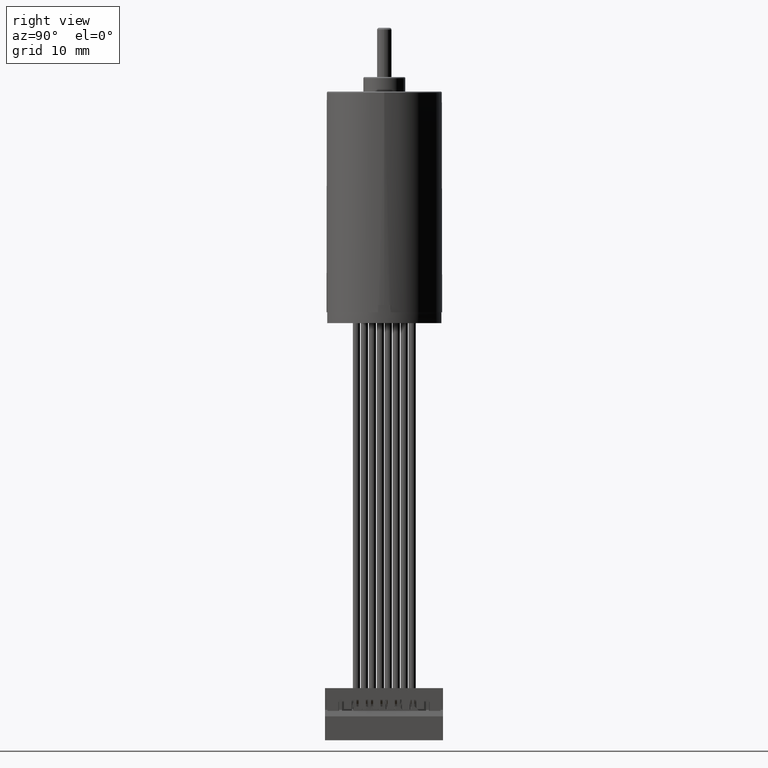
[diagram: clean part render]
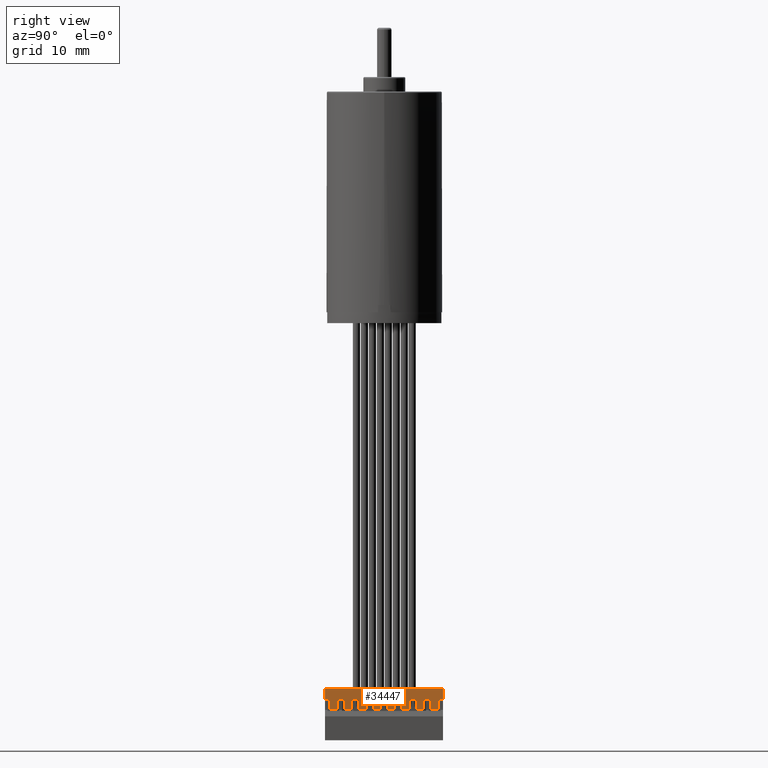
[diagram: same view with one face highlighted and labeled with its STEP entity id]
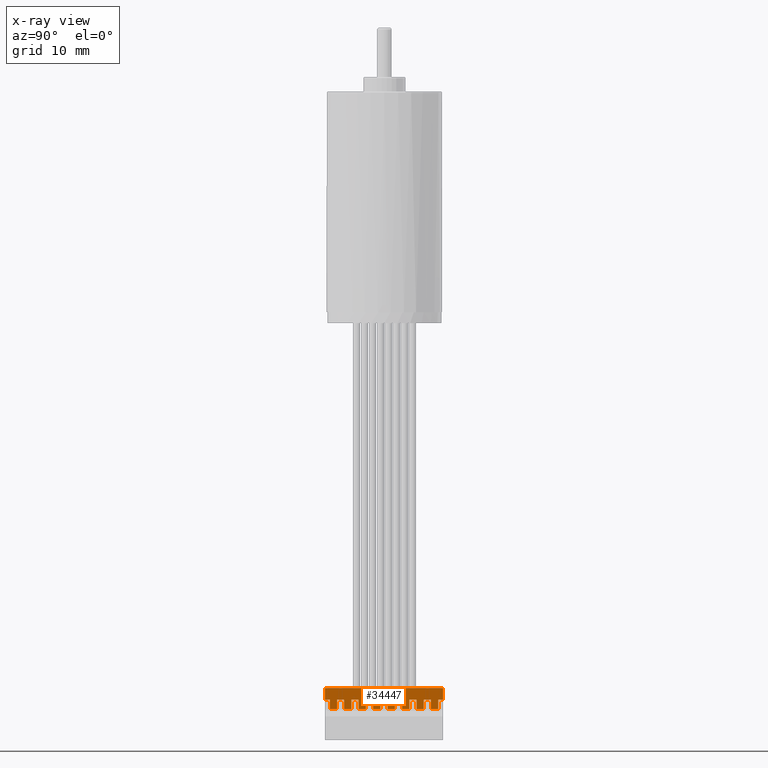
[diagram: x-ray of the same camera — body ghosted, the highlighted face saturated]
A machine part, right view. The second image highlights one B-rep face of the part: STEP entity #34447.
The next image is the same camera in x-ray: the body ghosted, the highlighted face saturated — about 0% of this face is hidden behind the body in this view.
In plain terms, the highlighted planar face has unit normal (1, 0, 0).
Its self-contained STEP definition (entity closure, byte-faithful):
#31635=DIRECTION('',(0.E0,0.E0,-1.E0));
#31636=VECTOR('',#31635,6.5E-1);
#31637=CARTESIAN_POINT('',(0.E0,1.6E0,6.5E-1));
#31638=LINE('',#31637,#31636);
#31671=DIRECTION('',(0.E0,0.E0,-1.E0));
#31672=VECTOR('',#31671,1.E0);
#31673=CARTESIAN_POINT('',(0.E0,1.6E0,2.65E0));
#31674=LINE('',#31673,#31672);
#31699=DIRECTION('',(0.E0,1.E0,0.E0));
#31700=VECTOR('',#31699,1.3E0);
#31701=CARTESIAN_POINT('',(0.E0,1.6E0,1.465E1));
#31702=LINE('',#31701,#31700);
#31703=DIRECTION('',(0.E0,0.E0,1.E0));
#31704=VECTOR('',#31703,1.E0);
#31705=CARTESIAN_POINT('',(0.E0,2.9E0,1.465E1));
#31706=LINE('',#31705,#31704);
#31707=DIRECTION('',(0.E0,-1.E0,0.E0));
#31708=VECTOR('',#31707,1.3E0);
#31709=CARTESIAN_POINT('',(0.E0,2.9E0,1.565E1));
#31710=LINE('',#31709,#31708);
#31711=DIRECTION('',(0.E0,0.E0,-1.E0));
#31712=VECTOR('',#31711,1.63E1);
#31713=CARTESIAN_POINT('',(0.E0,0.E0,1.63E1));
#31714=LINE('',#31713,#31712);
#31715=DIRECTION('',(0.E0,1.E0,0.E0));
#31716=VECTOR('',#31715,1.6E0);
#31717=CARTESIAN_POINT('',(0.E0,0.E0,0.E0));
#31718=LINE('',#31717,#31716);
#31719=DIRECTION('',(0.E0,1.E0,0.E0));
#31720=VECTOR('',#31719,1.3E0);
#31721=CARTESIAN_POINT('',(0.E0,1.6E0,6.5E-1));
#31722=LINE('',#31721,#31720);
#31723=DIRECTION('',(0.E0,0.E0,1.E0));
#31724=VECTOR('',#31723,1.E0);
#31725=CARTESIAN_POINT('',(0.E0,2.9E0,6.5E-1));
#31726=LINE('',#31725,#31724);
#31727=DIRECTION('',(0.E0,-1.E0,0.E0));
#31728=VECTOR('',#31727,1.3E0);
#31729=CARTESIAN_POINT('',(0.E0,2.9E0,1.65E0));
#31730=LINE('',#31729,#31728);
#31731=DIRECTION('',(0.E0,1.E0,0.E0));
#31732=VECTOR('',#31731,1.3E0);
#31733=CARTESIAN_POINT('',(0.E0,1.6E0,2.65E0));
#31734=LINE('',#31733,#31732);
#31735=DIRECTION('',(0.E0,0.E0,1.E0));
#31736=VECTOR('',#31735,1.E0);
#31737=CARTESIAN_POINT('',(0.E0,2.9E0,2.65E0));
#31738=LINE('',#31737,#31736);
#31739=DIRECTION('',(0.E0,-1.E0,0.E0));
#31740=VECTOR('',#31739,1.3E0);
#31741=CARTESIAN_POINT('',(0.E0,2.9E0,3.65E0));
#31742=LINE('',#31741,#31740);
#31743=DIRECTION('',(0.E0,1.E0,0.E0));
#31744=VECTOR('',#31743,1.3E0);
#31745=CARTESIAN_POINT('',(0.E0,1.6E0,4.65E0));
#31746=LINE('',#31745,#31744);
#31747=DIRECTION('',(0.E0,0.E0,1.E0));
#31748=VECTOR('',#31747,1.E0);
#31749=CARTESIAN_POINT('',(0.E0,2.9E0,4.65E0));
#31750=LINE('',#31749,#31748);
#31751=DIRECTION('',(0.E0,-1.E0,0.E0));
#31752=VECTOR('',#31751,1.3E0);
#31753=CARTESIAN_POINT('',(0.E0,2.9E0,5.65E0));
#31754=LINE('',#31753,#31752);
#31755=DIRECTION('',(0.E0,1.E0,0.E0));
#31756=VECTOR('',#31755,1.3E0);
#31757=CARTESIAN_POINT('',(0.E0,1.6E0,6.65E0));
#31758=LINE('',#31757,#31756);
#31759=DIRECTION('',(0.E0,0.E0,1.E0));
#31760=VECTOR('',#31759,1.E0);
#31761=CARTESIAN_POINT('',(0.E0,2.9E0,6.65E0));
#31762=LINE('',#31761,#31760);
#31763=DIRECTION('',(0.E0,-1.E0,0.E0));
#31764=VECTOR('',#31763,1.3E0);
#31765=CARTESIAN_POINT('',(0.E0,2.9E0,7.65E0));
#31766=LINE('',#31765,#31764);
#31767=DIRECTION('',(0.E0,1.E0,0.E0));
#31768=VECTOR('',#31767,1.3E0);
#31769=CARTESIAN_POINT('',(0.E0,1.6E0,8.65E0));
#31770=LINE('',#31769,#31768);
#31771=DIRECTION('',(0.E0,0.E0,1.E0));
#31772=VECTOR('',#31771,1.E0);
#31773=CARTESIAN_POINT('',(0.E0,2.9E0,8.65E0));
#31774=LINE('',#31773,#31772);
#31775=DIRECTION('',(0.E0,-1.E0,0.E0));
#31776=VECTOR('',#31775,1.3E0);
#31777=CARTESIAN_POINT('',(0.E0,2.9E0,9.65E0));
#31778=LINE('',#31777,#31776);
#31779=DIRECTION('',(0.E0,1.E0,0.E0));
#31780=VECTOR('',#31779,1.3E0);
#31781=CARTESIAN_POINT('',(0.E0,1.6E0,1.065E1));
#31782=LINE('',#31781,#31780);
#31783=DIRECTION('',(0.E0,0.E0,1.E0));
#31784=VECTOR('',#31783,1.E0);
#31785=CARTESIAN_POINT('',(0.E0,2.9E0,1.065E1));
#31786=LINE('',#31785,#31784);
#31787=DIRECTION('',(0.E0,-1.E0,0.E0));
#31788=VECTOR('',#31787,1.3E0);
#31789=CARTESIAN_POINT('',(0.E0,2.9E0,1.165E1));
#31790=LINE('',#31789,#31788);
#31791=DIRECTION('',(0.E0,1.E0,0.E0));
#31792=VECTOR('',#31791,1.3E0);
#31793=CARTESIAN_POINT('',(0.E0,1.6E0,1.265E1));
#31794=LINE('',#31793,#31792);
#31795=DIRECTION('',(0.E0,0.E0,1.E0));
#31796=VECTOR('',#31795,1.E0);
#31797=CARTESIAN_POINT('',(0.E0,2.9E0,1.265E1));
#31798=LINE('',#31797,#31796);
#31799=DIRECTION('',(0.E0,-1.E0,0.E0));
#31800=VECTOR('',#31799,1.3E0);
#31801=CARTESIAN_POINT('',(0.E0,2.9E0,1.365E1));
#31802=LINE('',#31801,#31800);
#31807=DIRECTION('',(0.E0,0.E0,-1.E0));
#31808=VECTOR('',#31807,1.E0);
#31809=CARTESIAN_POINT('',(0.E0,1.6E0,1.465E1));
#31810=LINE('',#31809,#31808);
#31851=DIRECTION('',(0.E0,0.E0,-1.E0));
#31852=VECTOR('',#31851,6.5E-1);
#31853=CARTESIAN_POINT('',(0.E0,1.6E0,1.63E1));
#31854=LINE('',#31853,#31852);
#32011=DIRECTION('',(0.E0,0.E0,-1.E0));
#32012=VECTOR('',#32011,1.E0);
#32013=CARTESIAN_POINT('',(0.E0,1.6E0,1.265E1));
#32014=LINE('',#32013,#32012);
#32055=DIRECTION('',(0.E0,0.E0,-1.E0));
#32056=VECTOR('',#32055,1.E0);
#32057=CARTESIAN_POINT('',(0.E0,1.6E0,1.065E1));
#32058=LINE('',#32057,#32056);
#32099=DIRECTION('',(0.E0,0.E0,-1.E0));
#32100=VECTOR('',#32099,1.E0);
#32101=CARTESIAN_POINT('',(0.E0,1.6E0,8.65E0));
#32102=LINE('',#32101,#32100);
#32143=DIRECTION('',(0.E0,0.E0,-1.E0));
#32144=VECTOR('',#32143,1.E0);
#32145=CARTESIAN_POINT('',(0.E0,1.6E0,6.65E0));
#32146=LINE('',#32145,#32144);
#32187=DIRECTION('',(0.E0,0.E0,-1.E0));
#32188=VECTOR('',#32187,1.E0);
#32189=CARTESIAN_POINT('',(0.E0,1.6E0,4.65E0));
#32190=LINE('',#32189,#32188);
#32303=DIRECTION('',(0.E0,1.E0,0.E0));
#32304=VECTOR('',#32303,1.6E0);
#32305=CARTESIAN_POINT('',(0.E0,0.E0,1.63E1));
#32306=LINE('',#32305,#32304);
#33624=CARTESIAN_POINT('',(0.E0,1.6E0,0.E0));
#33626=VERTEX_POINT('',#33624);
#33627=CARTESIAN_POINT('',(0.E0,0.E0,0.E0));
#33628=VERTEX_POINT('',#33627);
#33641=CARTESIAN_POINT('',(0.E0,1.6E0,6.5E-1));
#33643=VERTEX_POINT('',#33641);
#33648=CARTESIAN_POINT('',(0.E0,1.6E0,2.65E0));
#33650=VERTEX_POINT('',#33648);
#33651=CARTESIAN_POINT('',(0.E0,1.6E0,1.65E0));
#33652=VERTEX_POINT('',#33651);
#33660=CARTESIAN_POINT('',(0.E0,1.6E0,4.65E0));
#33662=VERTEX_POINT('',#33660);
#33663=CARTESIAN_POINT('',(0.E0,1.6E0,3.65E0));
#33664=VERTEX_POINT('',#33663);
#33672=CARTESIAN_POINT('',(0.E0,1.6E0,6.65E0));
#33674=VERTEX_POINT('',#33672);
#33675=CARTESIAN_POINT('',(0.E0,1.6E0,5.65E0));
#33676=VERTEX_POINT('',#33675);
#33684=CARTESIAN_POINT('',(0.E0,1.6E0,8.65E0));
#33686=VERTEX_POINT('',#33684);
#33687=CARTESIAN_POINT('',(0.E0,1.6E0,7.65E0));
#33688=VERTEX_POINT('',#33687);
#33696=CARTESIAN_POINT('',(0.E0,1.6E0,1.065E1));
#33698=VERTEX_POINT('',#33696);
#33699=CARTESIAN_POINT('',(0.E0,1.6E0,9.65E0));
#33700=VERTEX_POINT('',#33699);
#33708=CARTESIAN_POINT('',(0.E0,1.6E0,1.265E1));
#33710=VERTEX_POINT('',#33708);
#33711=CARTESIAN_POINT('',(0.E0,1.6E0,1.165E1));
#33712=VERTEX_POINT('',#33711);
#33720=CARTESIAN_POINT('',(0.E0,1.6E0,1.565E1));
#33722=VERTEX_POINT('',#33720);
#33727=CARTESIAN_POINT('',(0.E0,1.6E0,1.63E1));
#33728=VERTEX_POINT('',#33727);
#33730=CARTESIAN_POINT('',(0.E0,1.6E0,1.465E1));
#33732=VERTEX_POINT('',#33730);
#33733=CARTESIAN_POINT('',(0.E0,1.6E0,1.365E1));
#33734=VERTEX_POINT('',#33733);
#33743=CARTESIAN_POINT('',(0.E0,2.9E0,6.5E-1));
#33744=VERTEX_POINT('',#33743);
#33933=CARTESIAN_POINT('',(0.E0,0.E0,1.63E1));
#33934=VERTEX_POINT('',#33933);
#33999=CARTESIAN_POINT('',(0.E0,2.9E0,1.465E1));
#34000=VERTEX_POINT('',#33999);
#34001=CARTESIAN_POINT('',(0.E0,2.9E0,1.565E1));
#34002=VERTEX_POINT('',#34001);
#34003=CARTESIAN_POINT('',(0.E0,2.9E0,1.65E0));
#34004=VERTEX_POINT('',#34003);
#34005=CARTESIAN_POINT('',(0.E0,2.9E0,2.65E0));
#34006=VERTEX_POINT('',#34005);
#34007=CARTESIAN_POINT('',(0.E0,2.9E0,3.65E0));
#34008=VERTEX_POINT('',#34007);
#34009=CARTESIAN_POINT('',(0.E0,2.9E0,4.65E0));
#34010=VERTEX_POINT('',#34009);
#34011=CARTESIAN_POINT('',(0.E0,2.9E0,5.65E0));
#34012=VERTEX_POINT('',#34011);
#34013=CARTESIAN_POINT('',(0.E0,2.9E0,6.65E0));
#34014=VERTEX_POINT('',#34013);
#34015=CARTESIAN_POINT('',(0.E0,2.9E0,7.65E0));
#34016=VERTEX_POINT('',#34015);
#34017=CARTESIAN_POINT('',(0.E0,2.9E0,8.65E0));
#34018=VERTEX_POINT('',#34017);
#34019=CARTESIAN_POINT('',(0.E0,2.9E0,9.65E0));
#34020=VERTEX_POINT('',#34019);
#34021=CARTESIAN_POINT('',(0.E0,2.9E0,1.065E1));
#34022=VERTEX_POINT('',#34021);
#34023=CARTESIAN_POINT('',(0.E0,2.9E0,1.165E1));
#34024=VERTEX_POINT('',#34023);
#34025=CARTESIAN_POINT('',(0.E0,2.9E0,1.265E1));
#34026=VERTEX_POINT('',#34025);
#34027=CARTESIAN_POINT('',(0.E0,2.9E0,1.365E1));
#34028=VERTEX_POINT('',#34027);
#34373=CARTESIAN_POINT('',(0.E0,7.2E0,0.E0));
#34374=DIRECTION('',(-1.E0,0.E0,0.E0));
#34375=DIRECTION('',(0.E0,-1.E0,0.E0));
#34376=AXIS2_PLACEMENT_3D('',#34373,#34374,#34375);
#34377=PLANE('',#34376);
#34379=ORIENTED_EDGE('',*,*,#34378,.F.);
#34381=ORIENTED_EDGE('',*,*,#34380,.T.);
#34383=ORIENTED_EDGE('',*,*,#34382,.T.);
#34385=ORIENTED_EDGE('',*,*,#34384,.T.);
#34387=ORIENTED_EDGE('',*,*,#34386,.F.);
#34389=ORIENTED_EDGE('',*,*,#34388,.F.);
#34391=ORIENTED_EDGE('',*,*,#34390,.T.);
#34392=ORIENTED_EDGE('',*,*,#34266,.T.);
#34393=ORIENTED_EDGE('',*,*,#34292,.F.);
#34394=ORIENTED_EDGE('',*,*,#34312,.T.);
#34396=ORIENTED_EDGE('',*,*,#34395,.T.);
#34398=ORIENTED_EDGE('',*,*,#34397,.T.);
#34399=ORIENTED_EDGE('',*,*,#34346,.F.);
#34400=ORIENTED_EDGE('',*,*,#34363,.T.);
#34402=ORIENTED_EDGE('',*,*,#34401,.T.);
#34404=ORIENTED_EDGE('',*,*,#34403,.T.);
#34406=ORIENTED_EDGE('',*,*,#34405,.F.);
#34408=ORIENTED_EDGE('',*,*,#34407,.T.);
#34410=ORIENTED_EDGE('',*,*,#34409,.T.);
#34412=ORIENTED_EDGE('',*,*,#34411,.T.);
#34414=ORIENTED_EDGE('',*,*,#34413,.F.);
#34416=ORIENTED_EDGE('',*,*,#34415,.T.);
#34418=ORIENTED_EDGE('',*,*,#34417,.T.);
#34420=ORIENTED_EDGE('',*,*,#34419,.T.);
#34422=ORIENTED_EDGE('',*,*,#34421,.F.);
#34424=ORIENTED_EDGE('',*,*,#34423,.T.);
#34426=ORIENTED_EDGE('',*,*,#34425,.T.);
#34428=ORIENTED_EDGE('',*,*,#34427,.T.);
#34430=ORIENTED_EDGE('',*,*,#34429,.F.);
#34432=ORIENTED_EDGE('',*,*,#34431,.T.);
#34434=ORIENTED_EDGE('',*,*,#34433,.T.);
#34436=ORIENTED_EDGE('',*,*,#34435,.T.);
#34438=ORIENTED_EDGE('',*,*,#34437,.F.);
#34440=ORIENTED_EDGE('',*,*,#34439,.T.);
#34442=ORIENTED_EDGE('',*,*,#34441,.T.);
#34444=ORIENTED_EDGE('',*,*,#34443,.T.);
#34445=EDGE_LOOP('',(#34379,#34381,#34383,#34385,#34387,#34389,#34391,#34392,
#34393,#34394,#34396,#34398,#34399,#34400,#34402,#34404,#34406,#34408,#34410,
#34412,#34414,#34416,#34418,#34420,#34422,#34424,#34426,#34428,#34430,#34432,
#34434,#34436,#34438,#34440,#34442,#34444));
#34446=FACE_OUTER_BOUND('',#34445,.F.);
#34447=ADVANCED_FACE('',(#34446),#34377,.T.);
#34266=EDGE_CURVE('',#33628,#33626,#31718,.T.);
#34292=EDGE_CURVE('',#33643,#33626,#31638,.T.);
#34312=EDGE_CURVE('',#33643,#33744,#31722,.T.);
#34346=EDGE_CURVE('',#33650,#33652,#31674,.T.);
#34363=EDGE_CURVE('',#33650,#34006,#31734,.T.);
#34378=EDGE_CURVE('',#33732,#33734,#31810,.T.);
#34380=EDGE_CURVE('',#33732,#34000,#31702,.T.);
#34382=EDGE_CURVE('',#34000,#34002,#31706,.T.);
#34384=EDGE_CURVE('',#34002,#33722,#31710,.T.);
#34386=EDGE_CURVE('',#33728,#33722,#31854,.T.);
#34388=EDGE_CURVE('',#33934,#33728,#32306,.T.);
#34390=EDGE_CURVE('',#33934,#33628,#31714,.T.);
#34395=EDGE_CURVE('',#33744,#34004,#31726,.T.);
#34397=EDGE_CURVE('',#34004,#33652,#31730,.T.);
#34401=EDGE_CURVE('',#34006,#34008,#31738,.T.);
#34403=EDGE_CURVE('',#34008,#33664,#31742,.T.);
#34405=EDGE_CURVE('',#33662,#33664,#32190,.T.);
#34407=EDGE_CURVE('',#33662,#34010,#31746,.T.);
#34409=EDGE_CURVE('',#34010,#34012,#31750,.T.);
#34411=EDGE_CURVE('',#34012,#33676,#31754,.T.);
#34413=EDGE_CURVE('',#33674,#33676,#32146,.T.);
#34415=EDGE_CURVE('',#33674,#34014,#31758,.T.);
#34417=EDGE_CURVE('',#34014,#34016,#31762,.T.);
#34419=EDGE_CURVE('',#34016,#33688,#31766,.T.);
#34421=EDGE_CURVE('',#33686,#33688,#32102,.T.);
#34423=EDGE_CURVE('',#33686,#34018,#31770,.T.);
#34425=EDGE_CURVE('',#34018,#34020,#31774,.T.);
#34427=EDGE_CURVE('',#34020,#33700,#31778,.T.);
#34429=EDGE_CURVE('',#33698,#33700,#32058,.T.);
#34431=EDGE_CURVE('',#33698,#34022,#31782,.T.);
#34433=EDGE_CURVE('',#34022,#34024,#31786,.T.);
#34435=EDGE_CURVE('',#34024,#33712,#31790,.T.);
#34437=EDGE_CURVE('',#33710,#33712,#32014,.T.);
#34439=EDGE_CURVE('',#33710,#34026,#31794,.T.);
#34441=EDGE_CURVE('',#34026,#34028,#31798,.T.);
#34443=EDGE_CURVE('',#34028,#33734,#31802,.T.);